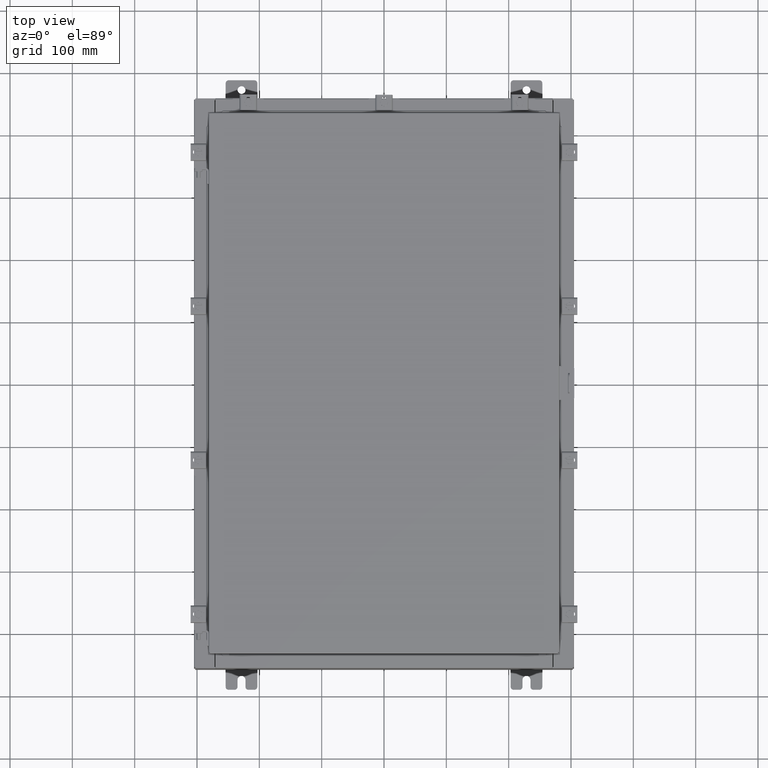
[diagram: clean part render]
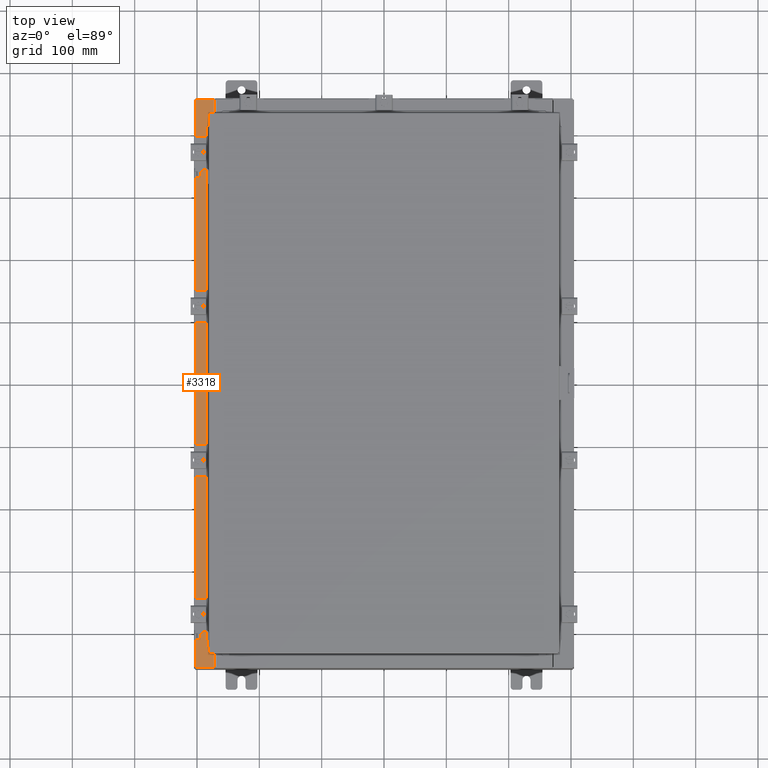
[diagram: same view with one face highlighted and labeled with its STEP entity id]
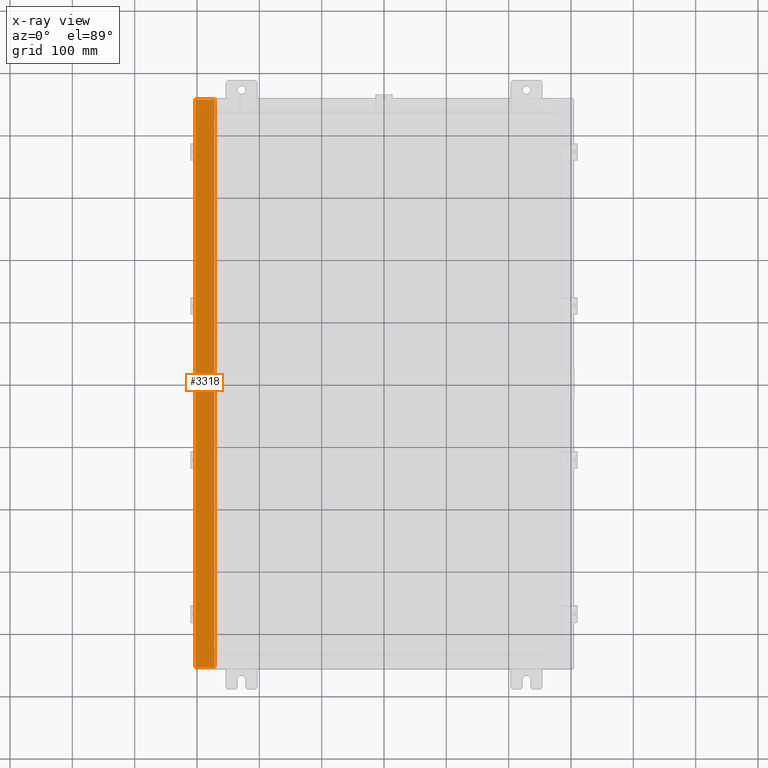
[diagram: x-ray of the same camera — body ghosted, the highlighted face saturated]
A machine part, top view. The second image highlights one B-rep face of the part: STEP entity #3318.
The next image is the same camera in x-ray: the body ghosted, the highlighted face saturated — about 0% of this face is hidden behind the body in this view.
In plain terms, the highlighted planar face has unit normal (0, 0, -1).
Its self-contained STEP definition (entity closure, byte-faithful):
#56 = CARTESIAN_POINT ( 'NONE',  ( -10.71270000000002100, 16.59375000000000000, 5.925300000000009800 ) ) ;
#316 = LINE ( 'NONE', #2256, #18849 ) ;
#388 = CARTESIAN_POINT ( 'NONE',  ( -10.75005000000002100, -16.63110000000000400, 5.925300000000008000 ) ) ;
#589 = LINE ( 'NONE', #12370, #19145 ) ;
#732 = EDGE_CURVE ( 'NONE', #13623, #7439, #18341, .T. ) ;
#843 = CARTESIAN_POINT ( 'NONE',  ( -10.69970000000002100, -17.92530000000000400, 5.925300000000008000 ) ) ;
#1292 = VERTEX_POINT ( 'NONE', #10203 ) ;
#1324 = EDGE_CURVE ( 'NONE', #9187, #14069, #22593, .T. ) ;
#1691 = CARTESIAN_POINT ( 'NONE',  ( -10.69970000000002100, -16.63110000000000700, 5.925300000000008000 ) ) ;
#1733 = LINE ( 'NONE', #5081, #20259 ) ;
#1847 = DIRECTION ( 'NONE',  ( -0.0000000000000000000, -1.000000000000000000, -0.0000000000000000000 ) ) ;
#2256 = CARTESIAN_POINT ( 'NONE',  ( -10.69970000000002100, 16.63110000000000000, 5.925300000000008900 ) ) ;
#2276 = EDGE_CURVE ( 'NONE', #20910, #1292, #316, .T. ) ;
#3026 = CARTESIAN_POINT ( 'NONE',  ( -11.91230000000002000, -17.92530000000000400, 5.925299999999999100 ) ) ;
#3038 = DIRECTION ( 'NONE',  ( -2.076025640262915200E-031, 1.000000000000000000, -1.480779759829717100E-045 ) ) ;
#3216 = DIRECTION ( 'NONE',  ( -2.076025640262915200E-031, 1.000000000000000000, -1.480779759829717100E-045 ) ) ;
#3234 = AXIS2_PLACEMENT_3D ( 'NONE', #19937, #5653, #18183 ) ;
#3318 = ADVANCED_FACE ( 'NONE', ( #11485 ), #16392, .F. ) ;
#3368 = CARTESIAN_POINT ( 'NONE',  ( -11.91230000000002000, 17.92529999999999600, 5.925299999999999100 ) ) ;
#3463 = DIRECTION ( 'NONE',  ( -1.000000000000000000, 0.0000000000000000000, 0.0000000000000000000 ) ) ;
#3734 = EDGE_CURVE ( 'NONE', #20910, #13623, #17934, .T. ) ;
#4433 = CARTESIAN_POINT ( 'NONE',  ( -10.69970000000002100, 16.63110000000000000, 5.925300000000008000 ) ) ;
#4478 = EDGE_CURVE ( 'NONE', #8050, #7439, #1733, .T. ) ;
#4550 = EDGE_CURVE ( 'NONE', #20132, #10703, #589, .T. ) ;
#4631 = VECTOR ( 'NONE', #1847, 39.37007874015748100 ) ;
#4685 = EDGE_LOOP ( 'NONE', ( #11112, #22164, #13499, #5126, #13351, #14140, #6670, #13174, #15404, #11295, #17180, #18564 ) ) ;
#5081 = CARTESIAN_POINT ( 'NONE',  ( -11.91230000000002000, 17.92529999999999600, 5.925299999999999100 ) ) ;
#5126 = ORIENTED_EDGE ( 'NONE', *, *, #4478, .F. ) ;
#5224 = CARTESIAN_POINT ( 'NONE',  ( -10.71270000000002100, 16.59375000000000000, 5.925300000000009800 ) ) ;
#5653 = DIRECTION ( 'NONE',  ( 7.132762385546384700E-015, 0.0000000000000000000, -1.000000000000000000 ) ) ;
#6020 = DIRECTION ( 'NONE',  ( -7.132762385546384700E-015, -0.0000000000000000000, 1.000000000000000000 ) ) ;
#6670 = ORIENTED_EDGE ( 'NONE', *, *, #4550, .F. ) ;
#6880 = EDGE_CURVE ( 'NONE', #19869, #14982, #18795, .T. ) ;
#7104 = LINE ( 'NONE', #13417, #20869 ) ;
#7199 = DIRECTION ( 'NONE',  ( -7.132762385546384700E-015, -0.0000000000000000000, 1.000000000000000000 ) ) ;
#7439 = VERTEX_POINT ( 'NONE', #3368 ) ;
#8022 = CIRCLE ( 'NONE', #21173, 0.01867499999999949400 ) ;
#8050 = VERTEX_POINT ( 'NONE', #3026 ) ;
#8389 = CARTESIAN_POINT ( 'NONE',  ( -10.69970000000002100, -2.221285154312107200E-030, 5.925300000000008000 ) ) ;
#8415 = CARTESIAN_POINT ( 'NONE',  ( -10.69970000000002100, 17.92529999999999600, 5.925300000000008000 ) ) ;
#9187 = VERTEX_POINT ( 'NONE', #20865 ) ;
#9444 = EDGE_CURVE ( 'NONE', #1292, #19869, #18852, .T. ) ;
#9558 = AXIS2_PLACEMENT_3D ( 'NONE', #17915, #7199, #19752 ) ;
#9855 = CARTESIAN_POINT ( 'NONE',  ( -10.75005000000002100, -16.59375000000000400, 5.925300000000008000 ) ) ;
#9903 = VERTEX_POINT ( 'NONE', #843 ) ;
#10114 = DIRECTION ( 'NONE',  ( -1.000000000000000000, -2.717614574405841100E-032, -7.132762385546384700E-015 ) ) ;
#10203 = CARTESIAN_POINT ( 'NONE',  ( -10.75005000000002100, 16.63110000000000000, 5.925300000000008000 ) ) ;
#10474 = DIRECTION ( 'NONE',  ( -0.0000000000000000000, 1.000000000000000000, -0.0000000000000000000 ) ) ;
#10584 = CARTESIAN_POINT ( 'NONE',  ( -10.71270000000002100, -16.59375000000000400, 5.925300000000009800 ) ) ;
#10703 = VERTEX_POINT ( 'NONE', #1691 ) ;
#11080 = LINE ( 'NONE', #56, #4631 ) ;
#11112 = ORIENTED_EDGE ( 'NONE', *, *, #2276, .F. ) ;
#11295 = ORIENTED_EDGE ( 'NONE', *, *, #18187, .F. ) ;
#11485 = FACE_OUTER_BOUND ( 'NONE', #4685, .T. ) ;
#12134 = VECTOR ( 'NONE', #3038, 39.37007874015748100 ) ;
#12370 = CARTESIAN_POINT ( 'NONE',  ( -10.75005000000002100, -16.63110000000000400, 5.925300000000009800 ) ) ;
#12656 = CARTESIAN_POINT ( 'NONE',  ( -10.75005000000002100, 16.59375000000000000, 5.925300000000009800 ) ) ;
#13161 = VECTOR ( 'NONE', #3216, 39.37007874015748100 ) ;
#13174 = ORIENTED_EDGE ( 'NONE', *, *, #16718, .F. ) ;
#13351 = ORIENTED_EDGE ( 'NONE', *, *, #13433, .T. ) ;
#13417 = CARTESIAN_POINT ( 'NONE',  ( -4.252457061909017700E-014, -17.92530000000000400, 5.925300000000084400 ) ) ;
#13433 = EDGE_CURVE ( 'NONE', #8050, #9903, #7104, .T. ) ;
#13499 = ORIENTED_EDGE ( 'NONE', *, *, #732, .T. ) ;
#13623 = VERTEX_POINT ( 'NONE', #8415 ) ;
#14069 = VERTEX_POINT ( 'NONE', #9855 ) ;
#14140 = ORIENTED_EDGE ( 'NONE', *, *, #14193, .T. ) ;
#14193 = EDGE_CURVE ( 'NONE', #9903, #10703, #17457, .T. ) ;
#14982 = VERTEX_POINT ( 'NONE', #5224 ) ;
#15404 = ORIENTED_EDGE ( 'NONE', *, *, #1324, .F. ) ;
#16392 = PLANE ( 'NONE',  #3234 ) ;
#16718 = EDGE_CURVE ( 'NONE', #14069, #20132, #8022, .T. ) ;
#16756 = CARTESIAN_POINT ( 'NONE',  ( -10.75005000000002100, -16.61242500000000200, 5.925300000000009800 ) ) ;
#17180 = ORIENTED_EDGE ( 'NONE', *, *, #6880, .F. ) ;
#17457 = LINE ( 'NONE', #8389, #12134 ) ;
#17677 = VECTOR ( 'NONE', #17968, 39.37007874015748100 ) ;
#17773 = VECTOR ( 'NONE', #3463, 39.37007874015748100 ) ;
#17915 = CARTESIAN_POINT ( 'NONE',  ( -10.75005000000002100, 16.61242499999999800, 5.925300000000009800 ) ) ;
#17934 = LINE ( 'NONE', #19289, #13161 ) ;
#17968 = DIRECTION ( 'NONE',  ( 1.000000000000000000, 0.0000000000000000000, 0.0000000000000000000 ) ) ;
#18183 = DIRECTION ( 'NONE',  ( -1.000000000000000000, 0.0000000000000000000, -7.132762385546384700E-015 ) ) ;
#18187 = EDGE_CURVE ( 'NONE', #14982, #9187, #11080, .T. ) ;
#18341 = LINE ( 'NONE', #22730, #22612 ) ;
#18547 = DIRECTION ( 'NONE',  ( 1.000000000000000000, 0.0000000000000000000, 0.0000000000000000000 ) ) ;
#18564 = ORIENTED_EDGE ( 'NONE', *, *, #9444, .F. ) ;
#18795 = LINE ( 'NONE', #12656, #17677 ) ;
#18849 = VECTOR ( 'NONE', #20792, 39.37007874015748100 ) ;
#18852 = CIRCLE ( 'NONE', #9558, 0.01867499999999949400 ) ;
#19145 = VECTOR ( 'NONE', #21412, 39.37007874015748100 ) ;
#19289 = CARTESIAN_POINT ( 'NONE',  ( -10.69970000000002100, -2.221285154312107200E-030, 5.925300000000008000 ) ) ;
#19752 = DIRECTION ( 'NONE',  ( 1.000000000000000000, 0.0000000000000000000, 0.0000000000000000000 ) ) ;
#19869 = VERTEX_POINT ( 'NONE', #21310 ) ;
#19937 = CARTESIAN_POINT ( 'NONE',  ( -4.252457061909017700E-014, 0.0000000000000000000, 5.925300000000084400 ) ) ;
#20132 = VERTEX_POINT ( 'NONE', #388 ) ;
#20259 = VECTOR ( 'NONE', #10474, 39.37007874015748100 ) ;
#20792 = DIRECTION ( 'NONE',  ( -1.000000000000000000, -4.340572780400098900E-014, 2.170286390200049500E-014 ) ) ;
#20865 = CARTESIAN_POINT ( 'NONE',  ( -10.71270000000002100, -16.59375000000000400, 5.925300000000009800 ) ) ;
#20869 = VECTOR ( 'NONE', #22417, 39.37007874015748100 ) ;
#20910 = VERTEX_POINT ( 'NONE', #4433 ) ;
#21173 = AXIS2_PLACEMENT_3D ( 'NONE', #16756, #6020, #18547 ) ;
#21310 = CARTESIAN_POINT ( 'NONE',  ( -10.75005000000002100, 16.59375000000000000, 5.925300000000008000 ) ) ;
#21412 = DIRECTION ( 'NONE',  ( 1.000000000000000000, -4.340572780400098900E-014, -2.170286390200049500E-014 ) ) ;
#22164 = ORIENTED_EDGE ( 'NONE', *, *, #3734, .T. ) ;
#22417 = DIRECTION ( 'NONE',  ( 1.000000000000000000, -4.379057701015054300E-047, 7.132762385546384700E-015 ) ) ;
#22593 = LINE ( 'NONE', #10584, #17773 ) ;
#22612 = VECTOR ( 'NONE', #10114, 39.37007874015748100 ) ;
#22730 = CARTESIAN_POINT ( 'NONE',  ( -4.252457061909017700E-014, 17.92529999999999600, 5.925300000000084400 ) ) ;